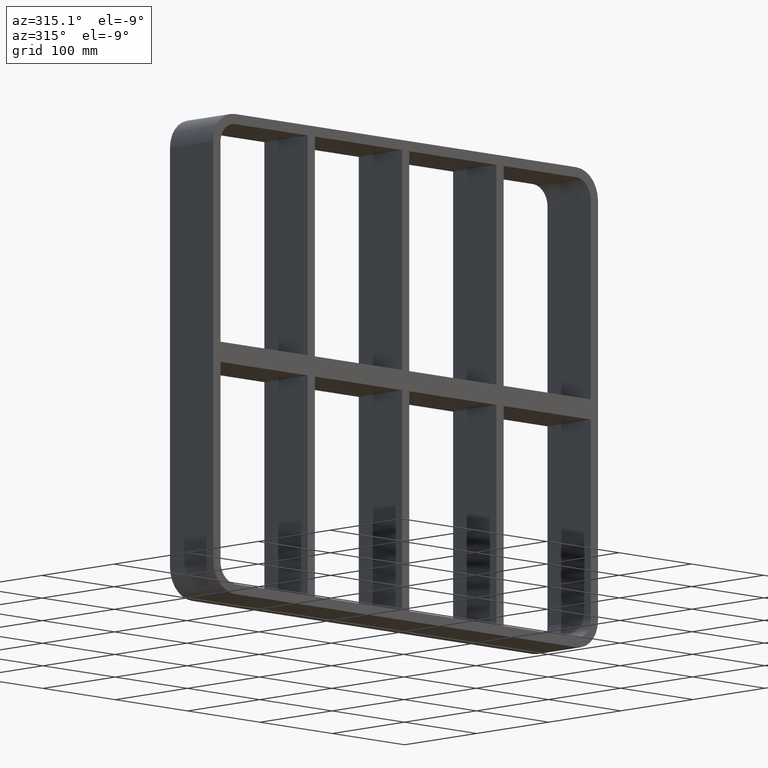
[diagram: clean part render]
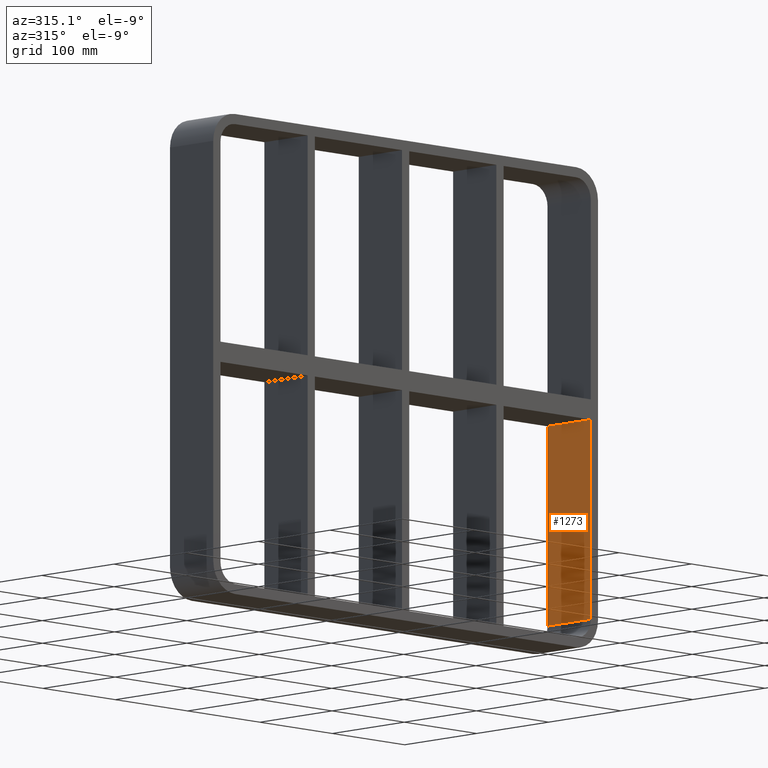
[diagram: same view with one face highlighted and labeled with its STEP entity id]
A machine part, auxiliary view. The second image highlights one B-rep face of the part: STEP entity #1273.
In plain terms, the highlighted planar face has unit normal (1, 0, 0).
Its self-contained STEP definition (entity closure, byte-faithful):
#652=CARTESIAN_POINT('',(256.00000000000364,-3.0,-10.00000000000929));
#653=VERTEX_POINT('',#652);
#660=CARTESIAN_POINT('',(256.00000000000011,-3.0,-208.00000000000006));
#661=VERTEX_POINT('',#660);
#662=CARTESIAN_POINT('',(256.00000000000011,-3.0,-10.000000000009294));
#663=DIRECTION('',(0.0,0.0,-1.0));
#664=VECTOR('',#663,197.99999999999071);
#665=LINE('',#662,#664);
#666=EDGE_CURVE('',#653,#661,#665,.T.);
#771=CARTESIAN_POINT('',(256.00000000000364,57.0,-10.00000000000929));
#772=VERTEX_POINT('',#771);
#779=CARTESIAN_POINT('',(256.00000000000011,-3.0,-10.000000000009273));
#780=DIRECTION('',(0.0,1.0,0.0));
#781=VECTOR('',#780,60.000000000000007);
#782=LINE('',#779,#781);
#783=EDGE_CURVE('',#653,#772,#782,.T.);
#889=CARTESIAN_POINT('',(256.00000000000011,57.0,-208.00000000000006));
#890=VERTEX_POINT('',#889);
#898=CARTESIAN_POINT('',(256.00000000000011,57.0,-208.0));
#899=DIRECTION('',(0.0,0.0,1.0));
#900=VECTOR('',#899,197.99999999999071);
#901=LINE('',#898,#900);
#902=EDGE_CURVE('',#890,#772,#901,.T.);
#1257=CARTESIAN_POINT('',(256.00000000000011,0.0,228.0));
#1258=DIRECTION('',(1.0,0.0,0.0));
#1259=DIRECTION('',(0.0,0.0,-1.0));
#1260=AXIS2_PLACEMENT_3D('',#1257,#1258,#1259);
#1261=PLANE('',#1260);
#1262=ORIENTED_EDGE('',*,*,#783,.T.);
#1263=ORIENTED_EDGE('',*,*,#902,.F.);
#1264=CARTESIAN_POINT('',(256.00000000000011,-3.0,-208.0));
#1265=DIRECTION('',(0.0,1.0,0.0));
#1266=VECTOR('',#1265,60.0);
#1267=LINE('',#1264,#1266);
#1268=EDGE_CURVE('',#661,#890,#1267,.T.);
#1269=ORIENTED_EDGE('',*,*,#1268,.F.);
#1270=ORIENTED_EDGE('',*,*,#666,.F.);
#1271=EDGE_LOOP('',(#1262,#1263,#1269,#1270));
#1272=FACE_OUTER_BOUND('',#1271,.T.);
#1273=ADVANCED_FACE('',(#1272),#1261,.F.);